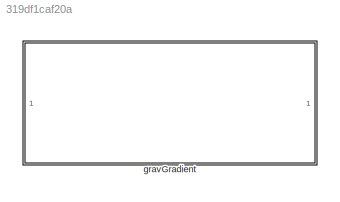
MODEL slx_319df1caf20a
KIND model
CONFIG AbsTol = auto
CONFIG EnableMultiTasking = off
CONFIG FixedStep = auto
CONFIG MaxStep = auto
CONFIG MinStep = auto
CONFIG RelTol = 1e-3
CONFIG SampleTimeConstraint = Unconstrained
CONFIG SolverName = VariableStepAuto
CONFIG StartTime = 0.0
CONFIG StopTime = 10.0
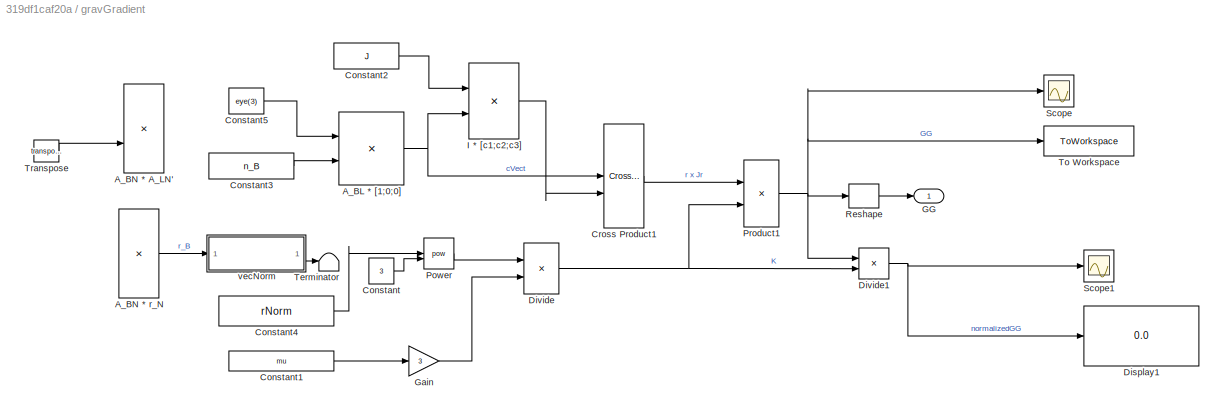
BLOCK [SubSystem] gravGradient
BLOCK [Product] gravGradient/A_BL * [1;0;0]
  Multiplication = Matrix(*)
BLOCK [Product] gravGradient/A_BN * A_LN'
  Commented = on
  Multiplication = Matrix(*)
BLOCK [Product] gravGradient/A_BN * r_N
  Commented = on
  Multiplication = Matrix(*)
BLOCK [Constant] gravGradient/Constant
  Value = 3
BLOCK [Constant] gravGradient/Constant1
  Value = mu
BLOCK [Constant] gravGradient/Constant2
  Value = J
BLOCK [Constant] gravGradient/Constant3
  Value = n_B
BLOCK [Constant] gravGradient/Constant4
  Value = rNorm
BLOCK [Constant] gravGradient/Constant5
  Value = eye(3)
BLOCK [Reference] gravGradient/Cross Product1  REF=matrix_library/Cross Product
  SourceBlock = matrix_library/Cross Product
  SourceType = CrossProduct
BLOCK [Display] gravGradient/Display1
  Decimation = 1
BLOCK [Product] gravGradient/Divide
  Inputs = /*
BLOCK [Product] gravGradient/Divide1
  Inputs = */
BLOCK [Outport] gravGradient/GG
BLOCK [Gain] gravGradient/Gain
  Gain = 3
BLOCK [Product] gravGradient/I * [c1;c2;c3]
  Multiplication = Matrix(*)
  NameLocation = top
BLOCK [Math] gravGradient/Power
  Operator = pow
BLOCK [Product] gravGradient/Product1
BLOCK [Reshape] gravGradient/Reshape
BLOCK [Scope] gravGradient/Scope
  Floating = off
  NumInputPorts = 1
  ScopeSpecificationString = Simulink.scopes.TimeScopeBlockCfg('CurrentConfiguration', extmgr.ConfigurationSet(extmgr.Configuration('Core','General UI',true),extmgr.Configuration('Core','Source UI',true),extmgr.Configuration('Sources','WiredSimulink',true,'DataLoggingVariableName','ScopeData1'),extmgr.Configuration('Visuals','Time Domain',true,'SerializedDisplays',{struct('MinYLimReal','-0.000000044','MaxYLimReal','0.00000004...<+1723ch>
BLOCK [Scope] gravGradient/Scope1
  Floating = off
  NumInputPorts = 1
  ScopeSpecificationString = Simulink.scopes.TimeScopeBlockCfg('CurrentConfiguration', extmgr.ConfigurationSet(extmgr.Configuration('Core','General UI',true),extmgr.Configuration('Core','Source UI',true),extmgr.Configuration('Sources','WiredSimulink',true,'DataLoggingVariableName','ScopeData2'),extmgr.Configuration('Visuals','Time Domain',true,'SerializedDisplays',{struct('MinYLimReal','-0.00814','MaxYLimReal','0.00996','YLab...<+1642ch>
BLOCK [Terminator] gravGradient/Terminator
BLOCK [ToWorkspace] gravGradient/To Workspace
  FixptAsFi = on
  MaxDataPoints = inf
  SampleTime = -1
  VariableName = tau_sim
BLOCK [Math] gravGradient/Transpose
  Commented = on
  Operator = transpose
BLOCK [SubSystem] gravGradient/vecNorm
  Commented = on
  ReferencedSubsystem = vecNorm
NET gravGradient/A_BL * [1;0;0]:1 -> gravGradient/Cross Product1:1, gravGradient/I * [c1;c2;c3]:2
LINE gravGradient/A_BN * r_N:1 -> gravGradient/vecNorm:1
LINE gravGradient/Constant1:1 -> gravGradient/Gain:1
LINE gravGradient/Constant2:1 -> gravGradient/I * [c1;c2;c3]:1
LINE gravGradient/Constant3:1 -> gravGradient/A_BL * [1;0;0]:2
LINE gravGradient/Constant4:1 -> gravGradient/Power:1
LINE gravGradient/Constant5:1 -> gravGradient/A_BL * [1;0;0]:1
LINE gravGradient/Constant:1 -> gravGradient/Power:2
LINE gravGradient/Cross Product1:1 -> gravGradient/Product1:1
NET gravGradient/Divide1:1 -> gravGradient/Display1:1, gravGradient/Scope1:1
NET gravGradient/Divide:1 -> gravGradient/Divide1:2, gravGradient/Product1:2
LINE gravGradient/Gain:1 -> gravGradient/Divide:2
LINE gravGradient/I * [c1;c2;c3]:1 -> gravGradient/Cross Product1:2
LINE gravGradient/Power:1 -> gravGradient/Divide:1
NET gravGradient/Product1:1 -> gravGradient/Divide1:1, gravGradient/Reshape:1, gravGradient/Scope:1, gravGradient/To Workspace:1
LINE gravGradient/Reshape:1 -> gravGradient/GG:1
LINE gravGradient/Transpose:1 -> gravGradient/A_BN * A_LN':2
LINE gravGradient/vecNorm:2 -> gravGradient/Terminator:1
note: NET lines group one-source signal fan-out (src -> all destinations, sorted); 1:1 wires keep LINE
